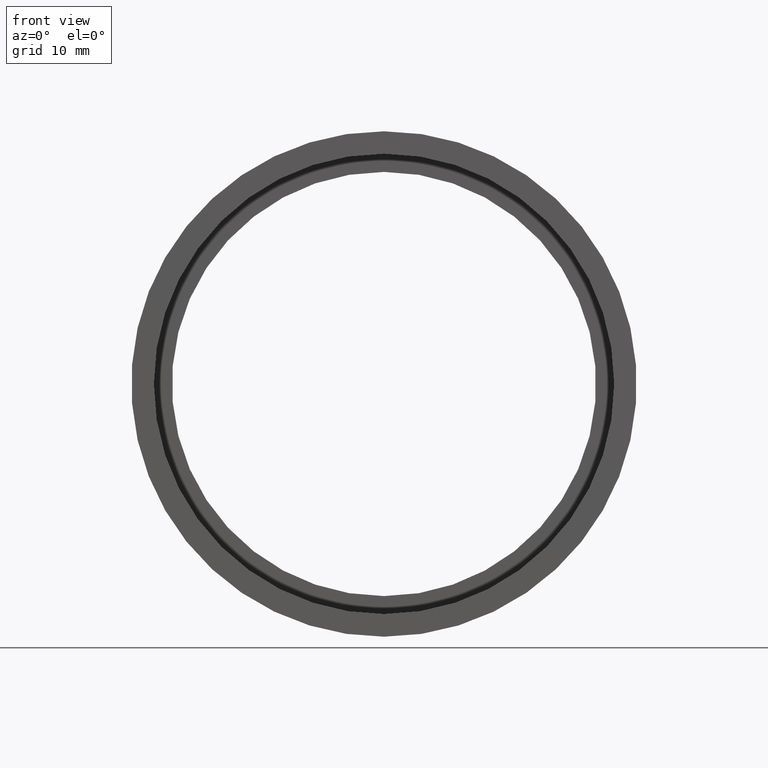
[diagram: clean part render]
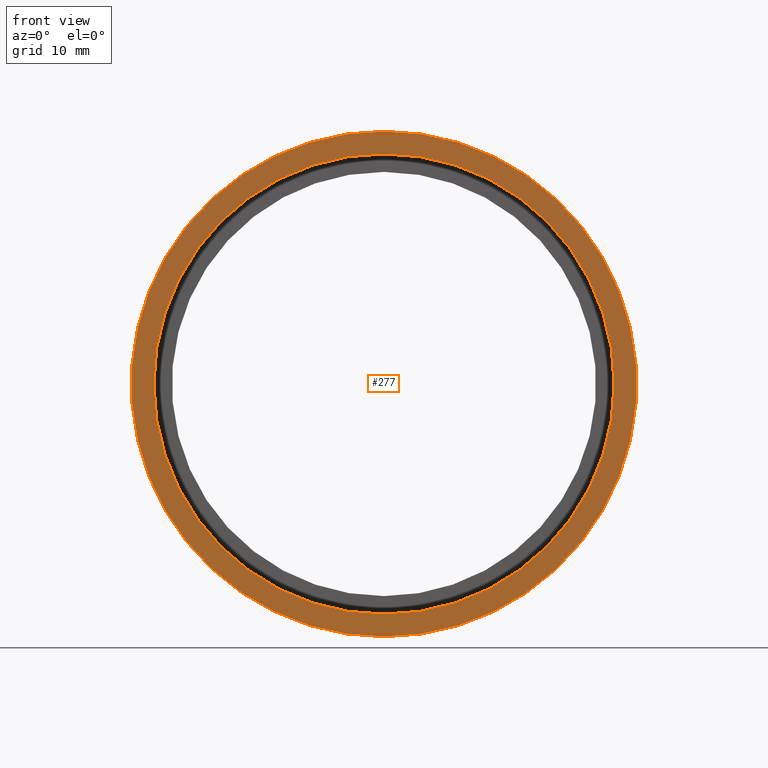
[diagram: same view with one face highlighted and labeled with its STEP entity id]
A machine part, front view. The second image highlights one B-rep face of the part: STEP entity #277.
In plain terms, the highlighted planar face has unit normal (-0, 1, 0).
Its self-contained STEP definition (entity closure, byte-faithful):
#13 = CIRCLE ( 'NONE', #509, 28.00000000000001800 ) ;
#21 = CARTESIAN_POINT ( 'NONE',  ( 0.0000000000000000000, -2.775557561562891400E-014, 28.00000000000001800 ) ) ;
#24 = CARTESIAN_POINT ( 'NONE',  ( 0.0000000000000000000, -2.775557561562891400E-014, 0.0000000000000000000 ) ) ;
#28 = VERTEX_POINT ( 'NONE', #428 ) ;
#71 = CARTESIAN_POINT ( 'NONE',  ( 3.122849337825753000E-015, -2.775557561562891400E-014, -25.50000000000001800 ) ) ;
#79 = DIRECTION ( 'NONE',  ( -0.0000000000000000000, 1.000000000000000000, 0.0000000000000000000 ) ) ;
#101 = VERTEX_POINT ( 'NONE', #21 ) ;
#128 = VERTEX_POINT ( 'NONE', #71 ) ;
#145 = DIRECTION ( 'NONE',  ( 0.0000000000000000000, 0.0000000000000000000, 1.000000000000000000 ) ) ;
#150 = CARTESIAN_POINT ( 'NONE',  ( 0.0000000000000000000, -2.775557561562891400E-014, 0.0000000000000000000 ) ) ;
#157 = EDGE_CURVE ( 'NONE', #28, #101, #520, .T. ) ;
#162 = CIRCLE ( 'NONE', #396, 25.50000000000001800 ) ;
#191 = CIRCLE ( 'NONE', #545, 25.50000000000001800 ) ;
#195 = EDGE_LOOP ( 'NONE', ( #238, #199 ) ) ;
#199 = ORIENTED_EDGE ( 'NONE', *, *, #157, .F. ) ;
#220 = CARTESIAN_POINT ( 'NONE',  ( 28.00000000000001800, -1.408179048343280700E-014, 0.0000000000000000000 ) ) ;
#225 = DIRECTION ( 'NONE',  ( 0.0000000000000000000, 0.0000000000000000000, 1.000000000000000000 ) ) ;
#238 = ORIENTED_EDGE ( 'NONE', *, *, #253, .F. ) ;
#242 = EDGE_LOOP ( 'NONE', ( #456, #305 ) ) ;
#253 = EDGE_CURVE ( 'NONE', #101, #28, #13, .T. ) ;
#275 = CARTESIAN_POINT ( 'NONE',  ( 0.0000000000000000000, -2.775557561562891400E-014, 25.50000000000001800 ) ) ;
#277 = ADVANCED_FACE ( 'NONE', ( #357, #490 ), #515, .F. ) ;
#305 = ORIENTED_EDGE ( 'NONE', *, *, #363, .T. ) ;
#318 = CARTESIAN_POINT ( 'NONE',  ( 0.0000000000000000000, -2.775557561562891400E-014, 0.0000000000000000000 ) ) ;
#333 = DIRECTION ( 'NONE',  ( 0.0000000000000000000, 0.0000000000000000000, 1.000000000000000000 ) ) ;
#348 = DIRECTION ( 'NONE',  ( -0.0000000000000000000, 1.000000000000000000, -0.0000000000000000000 ) ) ;
#351 = AXIS2_PLACEMENT_3D ( 'NONE', #24, #550, #452 ) ;
#357 = FACE_OUTER_BOUND ( 'NONE', #195, .T. ) ;
#363 = EDGE_CURVE ( 'NONE', #128, #531, #191, .T. ) ;
#396 = AXIS2_PLACEMENT_3D ( 'NONE', #150, #348, #145 ) ;
#421 = DIRECTION ( 'NONE',  ( -0.0000000000000000000, 1.000000000000000000, -0.0000000000000000000 ) ) ;
#428 = CARTESIAN_POINT ( 'NONE',  ( 3.429011037612590900E-015, -2.775557561562891400E-014, -28.00000000000001800 ) ) ;
#452 = DIRECTION ( 'NONE',  ( 0.0000000000000000000, 0.0000000000000000000, 1.000000000000000000 ) ) ;
#456 = ORIENTED_EDGE ( 'NONE', *, *, #594, .T. ) ;
#490 = FACE_BOUND ( 'NONE', #242, .T. ) ;
#509 = AXIS2_PLACEMENT_3D ( 'NONE', #318, #613, #567 ) ;
#515 = PLANE ( 'NONE',  #573 ) ;
#520 = CIRCLE ( 'NONE', #351, 28.00000000000001800 ) ;
#527 = CARTESIAN_POINT ( 'NONE',  ( 0.0000000000000000000, -2.775557561562891400E-014, 0.0000000000000000000 ) ) ;
#531 = VERTEX_POINT ( 'NONE', #275 ) ;
#545 = AXIS2_PLACEMENT_3D ( 'NONE', #527, #421, #333 ) ;
#550 = DIRECTION ( 'NONE',  ( -0.0000000000000000000, 1.000000000000000000, -0.0000000000000000000 ) ) ;
#567 = DIRECTION ( 'NONE',  ( 0.0000000000000000000, 0.0000000000000000000, 1.000000000000000000 ) ) ;
#573 = AXIS2_PLACEMENT_3D ( 'NONE', #220, #79, #225 ) ;
#594 = EDGE_CURVE ( 'NONE', #531, #128, #162, .T. ) ;
#613 = DIRECTION ( 'NONE',  ( -0.0000000000000000000, 1.000000000000000000, -0.0000000000000000000 ) ) ;